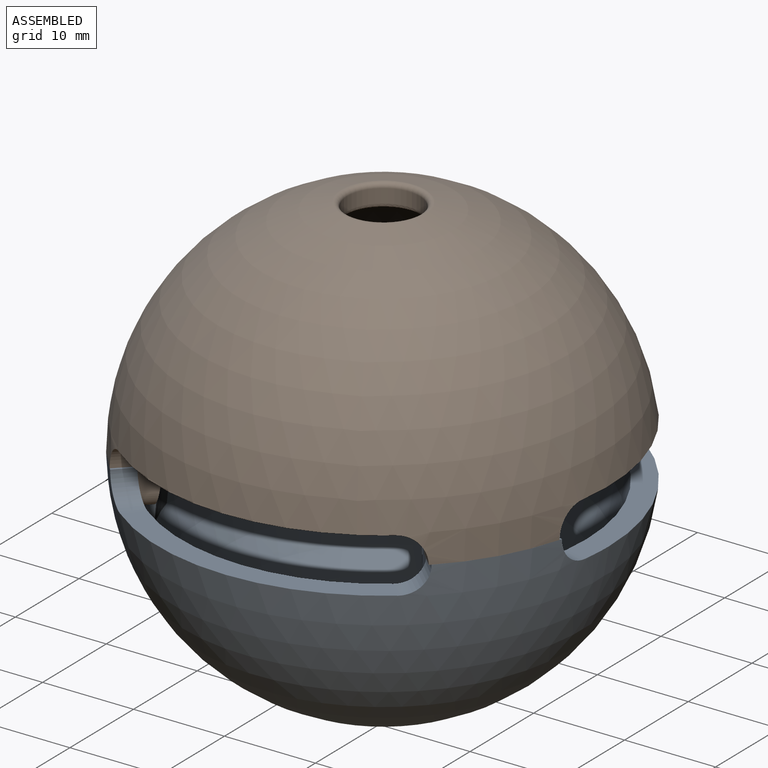
[diagram: assembled view]
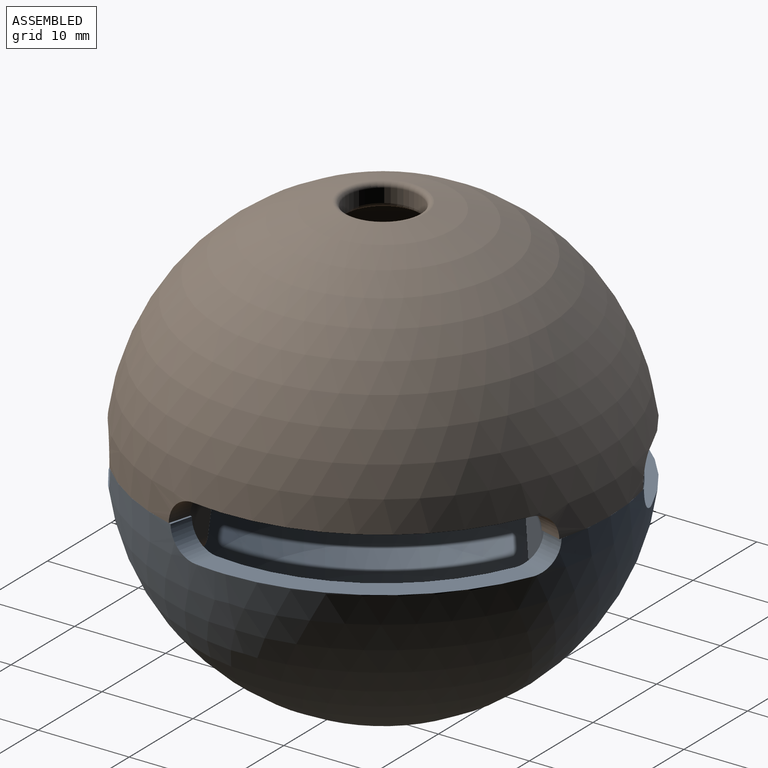
[diagram: assembled view, second angle]
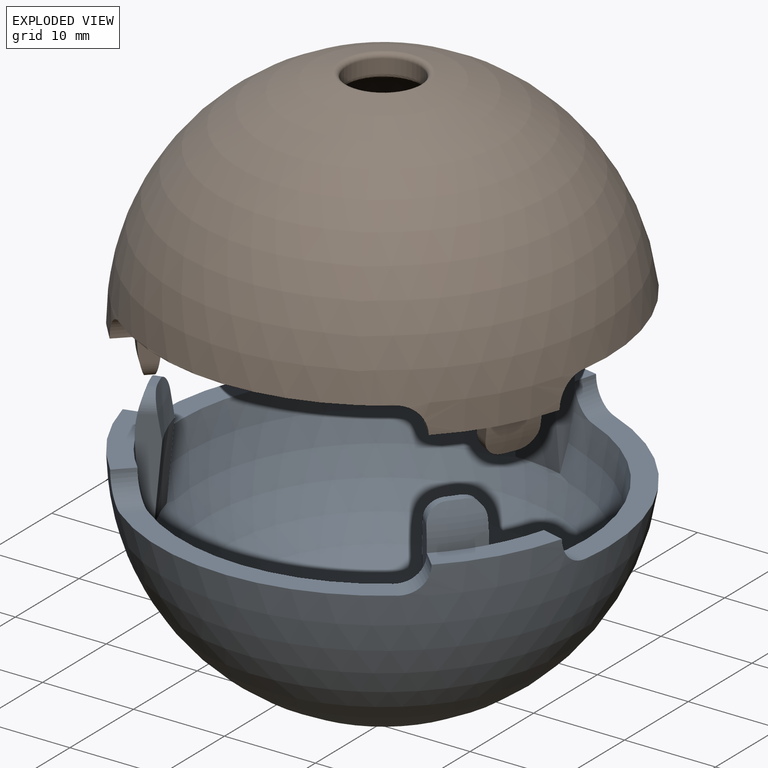
[diagram: exploded view]
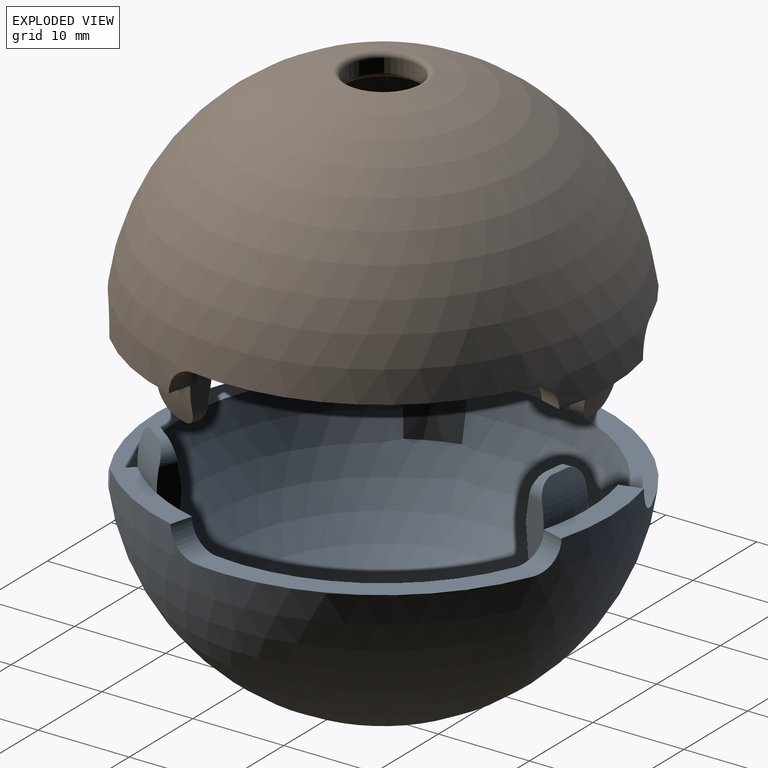
[diagram: exploded view, second angle]
ASSEMBLY  parts=2 mates=2
PART A: 47 faces, bbox 50x50x32.1 mm
  f0: sphere r=22.5mm, area 2659.9mm2, adj f1,f2,f3,f6,f7,f8,f9,f10
  f1: plane 11.85x8.24mm, normal (0,0,1), area 31.1mm2, adj f0,f4,f22,f40,f43
  f2: plane 12.94x3.27mm, normal (0,0,1), area 31.1mm2, adj f0,f4,f12,f39,f42
  f3: plane 11.85x8.24mm, normal (0,0,1), area 31.1mm2, adj f0,f4,f17,f41,f44
  f4: sphere r=25mm, area 3518.4mm2, adj f1,f2,f3,f6,f8,f10,f39,f40
  f5: cylinder r=4mm len=8mm, axis (0,0,1), area 38.4mm2, adj f45,f46
  f6: plane 30.6x7.07mm, normal (0,0,1), area 78.1mm2, adj f0,f4,f43,f44
  f7: plane 11.26x1.77mm, normal (-0.71,-0.71,0), area 19.2mm2, adj f0,f17,f18,f19,f31,f36
  f8: plane 26.5x16.2mm, normal (0,0,1), area 78.1mm2, adj f0,f4,f41,f42
  f9: plane 11.26x2.42mm, normal (0.97,-0.26,0), area 19.2mm2, adj f0,f12,f13,f14,f30,f34
  f10: plane 26.5x16.2mm, normal (0,0,1), area 78.1mm2, adj f0,f4,f39,f40
  f11: plane 11.26x2.42mm, normal (-0.26,0.97,0), area 19.2mm2, adj f0,f22,f23,f24,f32,f38
  f12: sphere r=22.5mm, area 4.9mm2, adj f2,f9,f16,f30
  f13: cone r=20mm half-angle=9.2deg, axis (0,0,1), area 23.1mm2, adj f9,f14,f15,f16,f33,f34
  f14: cone r=20mm half-angle=5.1deg, axis (0,0,-1), area 46.4mm2, adj f0,f9,f13,f16
  f15: plane 1.64x1.08mm, normal (0,0,1), area 1.4mm2, adj f13,f29,f33,f34
  f16: plane 11.26x2.5mm, normal (-1,0,0), area 19.2mm2, adj f0,f12,f13,f14,f30,f33
  f17: sphere r=22.5mm, area 4.9mm2, adj f3,f7,f21,f31
  f18: cone r=20mm half-angle=9.2deg, axis (0,0,1), area 23.1mm2, adj f7,f19,f20,f21,f35,f36
  f19: cone r=20mm half-angle=5.1deg, axis (0,0,-1), area 46.4mm2, adj f0,f7,f18,f21
  f20: plane 1.76x1.64mm, normal (0,0,1), area 1.4mm2, adj f18,f28,f35,f36
  f21: plane 11.26x2.17mm, normal (0.5,0.87,0), area 19.2mm2, adj f0,f17,f18,f19,f31,f35
  f22: sphere r=22.5mm, area 4.9mm2, adj f1,f11,f26,f32
  f23: cone r=20mm half-angle=9.2deg, axis (0,0,1), area 23.1mm2, adj f11,f24,f25,f26,f37,f38
  f24: cone r=20mm half-angle=5.1deg, axis (0,0,-1), area 46.4mm2, adj f0,f11,f23,f26
  f25: plane 1.76x1.41mm, normal (0,0,1), area 1.4mm2, adj f23,f27,f37,f38
  f26: plane 11.26x2.17mm, normal (0.5,-0.87,0), area 19.2mm2, adj f0,f22,f23,f24,f32,f37
  f27: cone r=21.63mm half-angle=19.6deg, axis (0,0,-1), area 3.3mm2, adj f25,f32,f37,f38
  f28: cone r=21.63mm half-angle=19.6deg, axis (0,0,-1), area 3.3mm2, adj f20,f31,f35,f36
  f29: cone r=21.63mm half-angle=19.6deg, axis (0,0,-1), area 3.3mm2, adj f15,f30,f33,f34
  f30: torus R=12.49mm, axis (0,0,1), area 17.5mm2, adj f9,f12,f16,f29,f33,f34
  f31: torus R=12.49mm, axis (0,0,1), area 17.5mm2, adj f7,f17,f21,f28,f35,f36
  f32: torus R=12.49mm, axis (0,0,1), area 17.5mm2, adj f11,f22,f26,f27,f37,f38
  f33: cylinder r=2mm len=2mm, axis (0,-1,0), area 3.9mm2, adj f13,f15,f16,f29,f30
  f34: cylinder r=2mm len=2.41mm, axis (-0.26,-0.97,0), area 3.9mm2, adj f9,f13,f15,f29,f30
  f35: cylinder r=2mm len=2.65mm, axis (-0.87,0.5,0), area 3.9mm2, adj f18,f20,f21,f28,f31
  f36: cylinder r=2mm len=2.71mm, axis (-0.71,0.71,0), area 3.9mm2, adj f7,f18,f20,f28,f31
  f37: cylinder r=2mm len=2.65mm, axis (0.87,0.5,0), area 3.9mm2, adj f23,f25,f26,f27,f32
  f38: cylinder r=2mm len=2.41mm, axis (0.97,0.26,0), area 3.9mm2, adj f11,f23,f25,f27,f32
  f39: cylinder r=3mm len=3.65mm, axis (-0.26,0.97,0), area 11.9mm2, adj f0,f2,f4,f10
  f40: cylinder r=3mm len=3.65mm, axis (0.97,0.26,0), area 11.9mm2, adj f0,f1,f4,f10
  f41: cylinder r=3mm len=3.65mm, axis (0.97,-0.26,0), area 11.9mm2, adj f0,f3,f4,f8
  f42: cylinder r=3mm len=3.65mm, axis (-0.26,-0.97,0), area 11.9mm2, adj f0,f2,f4,f8
  f43: cylinder r=3mm len=4.17mm, axis (-0.71,-0.71,0), area 11.9mm2, adj f0,f1,f4,f6
  f44: cylinder r=3mm len=4.17mm, axis (-0.71,0.71,0), area 11.9mm2, adj f0,f3,f4,f6
  f45: torus R=4.5mm, axis (0,0,1), area 23.3mm2, adj f4,f5
  f46: torus R=4.5mm, axis (0,0,1), area 17.9mm2, adj f0,f5
PART B: same geometry as A
PLACE A t=(-1.52,22.86,-72.16)mm fixed
PLACE B rot(axis=(0.86,-0.5,0),180deg) t=(-1.52,22.86,-72.16)mm
MATE cylindrical B.f5 <-> A.f5  axis (0,0,-1) through (-1.52,22.86,-48.84)mm
MATE planar B.f2 <-> A.f2  axis (0,0,-1) through (-22,11.33,-72.16)mm
